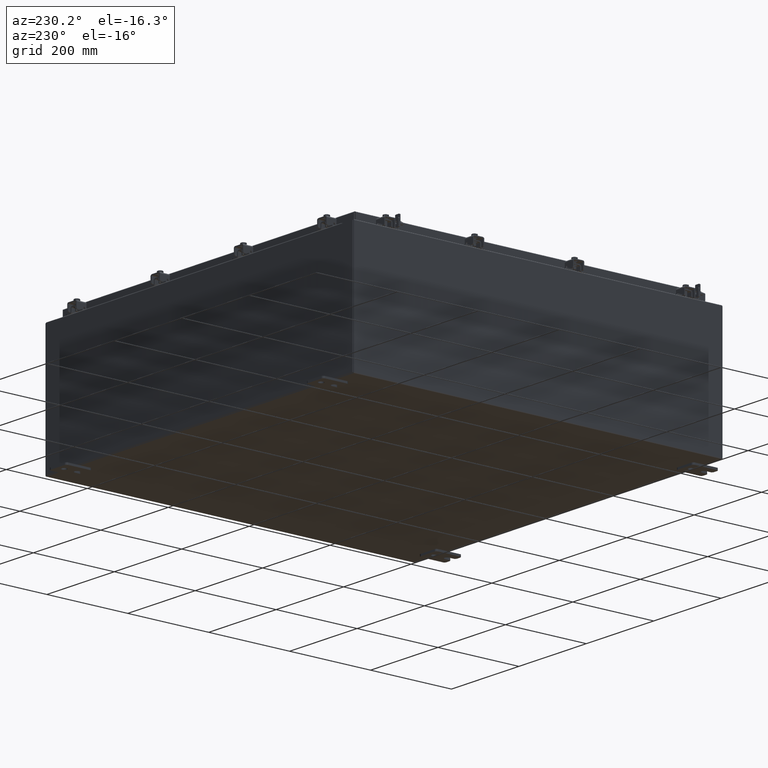
[diagram: clean part render]
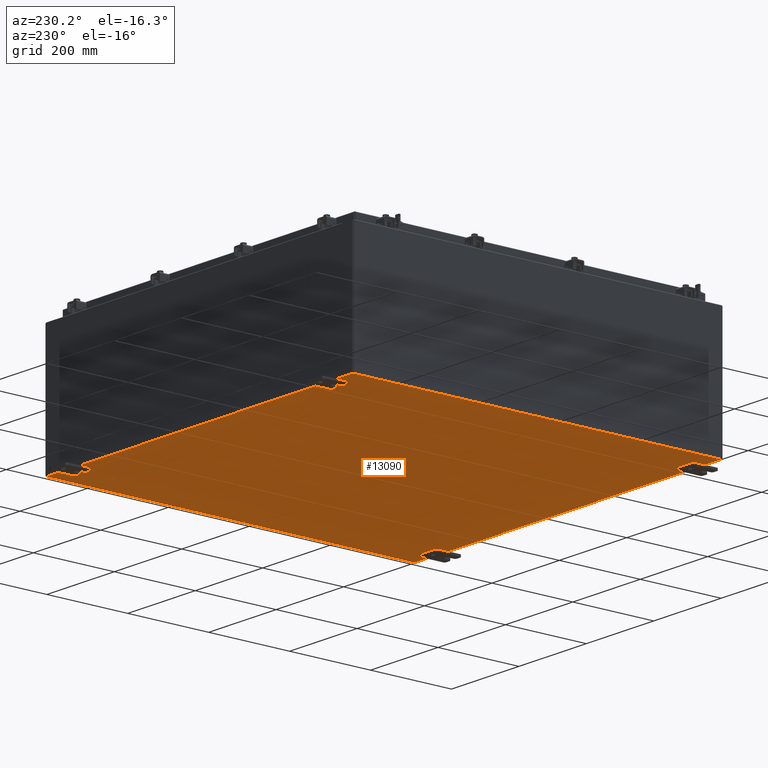
[diagram: same view with one face highlighted and labeled with its STEP entity id]
A machine part, auxiliary view. The second image highlights one B-rep face of the part: STEP entity #13090.
In plain terms, the highlighted planar face has unit normal (0, 0, -1).
Its self-contained STEP definition (entity closure, byte-faithful):
#149 = VECTOR ( 'NONE', #14840, 39.37007874015748100 ) ;
#1619 = VERTEX_POINT ( 'NONE', #8018 ) ;
#1861 = VERTEX_POINT ( 'NONE', #16090 ) ;
#2163 = ORIENTED_EDGE ( 'NONE', *, *, #5048, .F. ) ;
#2237 = CARTESIAN_POINT ( 'NONE',  ( -18.00000000000000000, 17.92530000000000000, -0.07470000000000000300 ) ) ;
#2334 = CARTESIAN_POINT ( 'NONE',  ( -17.91229999999999800, -17.92530000000000000, -0.07469999999999994700 ) ) ;
#2628 = EDGE_CURVE ( 'NONE', #7983, #10523, #4253, .T. ) ;
#3610 = VECTOR ( 'NONE', #22169, 39.37007874015748100 ) ;
#4253 = LINE ( 'NONE', #21435, #3610 ) ;
#4261 = DIRECTION ( 'NONE',  ( -1.000000000000000000, -0.0000000000000000000, -0.0000000000000000000 ) ) ;
#5048 = EDGE_CURVE ( 'NONE', #1619, #10523, #18217, .T. ) ;
#6381 = AXIS2_PLACEMENT_3D ( 'NONE', #16745, #8412, #23200 ) ;
#7074 = FACE_OUTER_BOUND ( 'NONE', #20433, .T. ) ;
#7813 = ORIENTED_EDGE ( 'NONE', *, *, #2628, .T. ) ;
#7983 = VERTEX_POINT ( 'NONE', #20406 ) ;
#8018 = CARTESIAN_POINT ( 'NONE',  ( -17.91229999999999800, -17.92530000000000000, -0.07469999999999994700 ) ) ;
#8412 = DIRECTION ( 'NONE',  ( 0.0000000000000000000, 0.0000000000000000000, -1.000000000000000000 ) ) ;
#8467 = EDGE_CURVE ( 'NONE', #1619, #1861, #16726, .T. ) ;
#10523 = VERTEX_POINT ( 'NONE', #20089 ) ;
#13090 = ADVANCED_FACE ( 'NONE', ( #7074 ), #21048, .T. ) ;
#13604 = LINE ( 'NONE', #2237, #17913 ) ;
#14840 = DIRECTION ( 'NONE',  ( -0.0000000000000000000, 1.000000000000000000, -0.0000000000000000000 ) ) ;
#16090 = CARTESIAN_POINT ( 'NONE',  ( -17.91229999999999800, 17.92530000000000000, -0.07470000000000000300 ) ) ;
#16726 = LINE ( 'NONE', #2334, #149 ) ;
#16745 = CARTESIAN_POINT ( 'NONE',  ( 0.0000000000000000000, 0.0000000000000000000, -0.07470000000000000300 ) ) ;
#17535 = VECTOR ( 'NONE', #26401, 39.37007874015748100 ) ;
#17913 = VECTOR ( 'NONE', #4261, 39.37007874015748100 ) ;
#18217 = LINE ( 'NONE', #25937, #17535 ) ;
#19160 = ORIENTED_EDGE ( 'NONE', *, *, #8467, .T. ) ;
#20089 = CARTESIAN_POINT ( 'NONE',  ( 17.91229999999999800, -17.92530000000000000, -0.07470000000000000300 ) ) ;
#20406 = CARTESIAN_POINT ( 'NONE',  ( 17.91229999999999800, 17.92530000000000000, -0.07470000000000251400 ) ) ;
#20433 = EDGE_LOOP ( 'NONE', ( #2163, #19160, #26102, #7813 ) ) ;
#21048 = PLANE ( 'NONE',  #6381 ) ;
#21435 = CARTESIAN_POINT ( 'NONE',  ( 17.91229999999999800, 17.92530000000000000, -0.07470000000000251400 ) ) ;
#22169 = DIRECTION ( 'NONE',  ( -0.0000000000000000000, -1.000000000000000000, 8.208677865577646300E-017 ) ) ;
#23200 = DIRECTION ( 'NONE',  ( -1.000000000000000000, 0.0000000000000000000, -0.0000000000000000000 ) ) ;
#23816 = EDGE_CURVE ( 'NONE', #7983, #1861, #13604, .T. ) ;
#25937 = CARTESIAN_POINT ( 'NONE',  ( -18.00000000000000000, -17.92530000000000000, -0.07470000000000000300 ) ) ;
#26102 = ORIENTED_EDGE ( 'NONE', *, *, #23816, .F. ) ;
#26401 = DIRECTION ( 'NONE',  ( 1.000000000000000000, 0.0000000000000000000, 0.0000000000000000000 ) ) ;